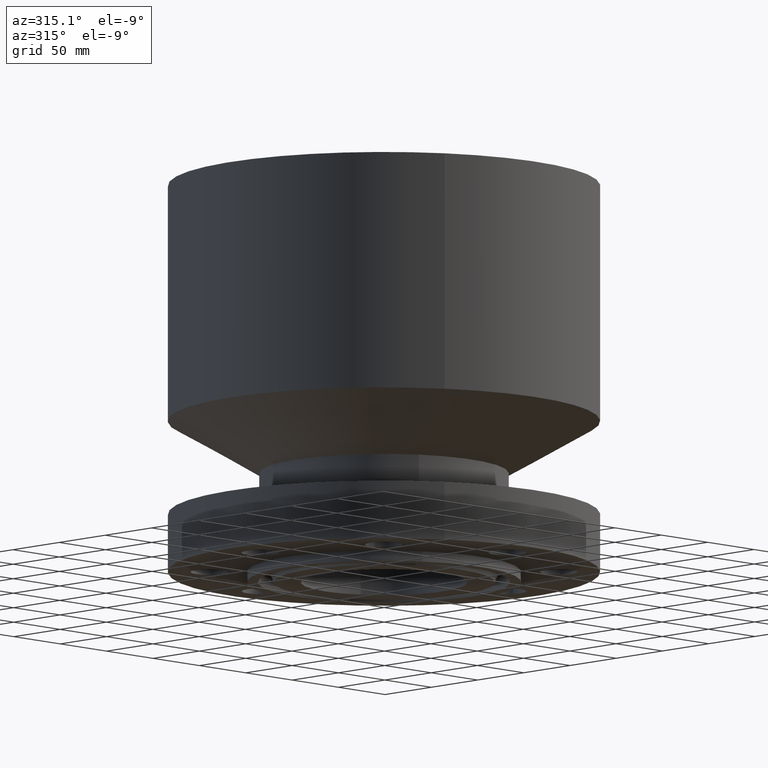
[diagram: clean part render]
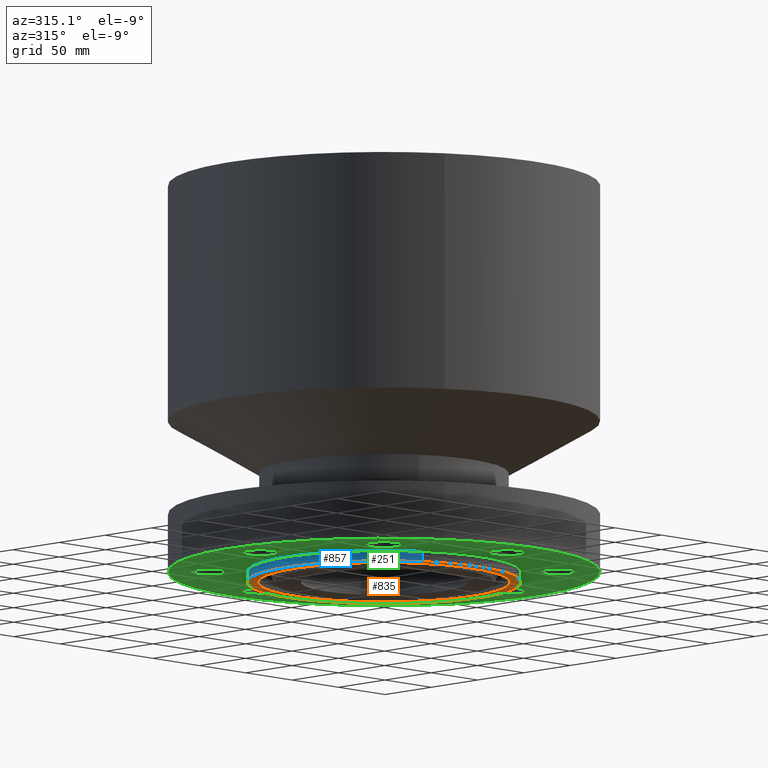
[diagram: same view with three faces highlighted in distinct colors, each labeled with its STEP entity id]
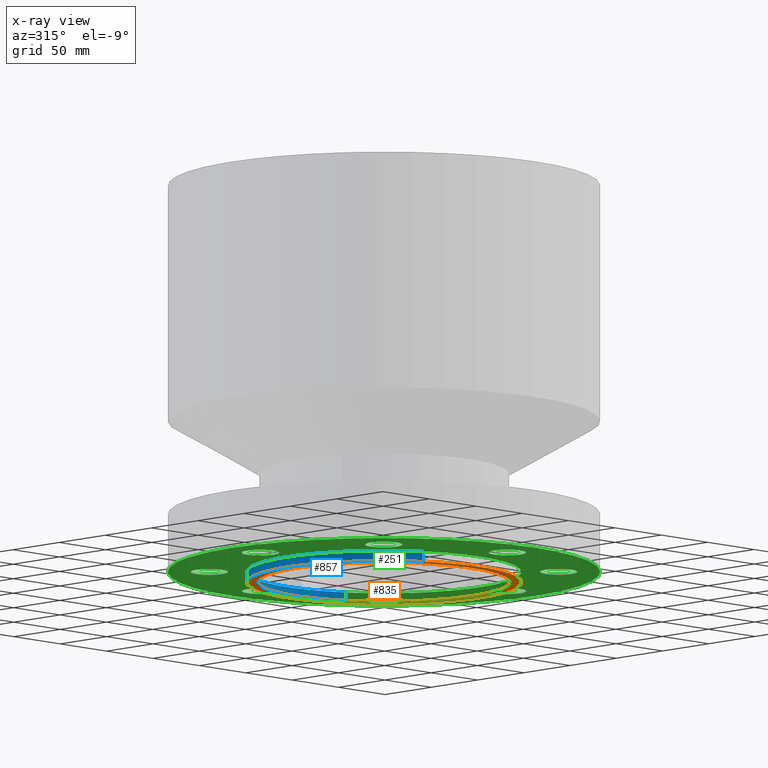
[diagram: x-ray of the same camera — body ghosted, the three highlighted faces saturated]
A machine part, auxiliary view with three faces highlighted in distinct colors.
The next image is the same camera in x-ray (body ghosted, the three faces saturated) — at least one of them is partly hidden behind the body in this view.
Their STEP definitions:

[orange] entity #835 — the highlighted planar face has unit normal (0, 0, -1).
#593=AXIS2_PLACEMENT_3D('Plane Axis2P3D',#590,#591,#592) ;
#784=AXIS2_PLACEMENT_3D('Circle Axis2P3D',#782,#783,$) ;
#803=AXIS2_PLACEMENT_3D('Circle Axis2P3D',#801,#802,$) ;
#815=AXIS2_PLACEMENT_3D('Circle Axis2P3D',#813,#814,$) ;
#824=AXIS2_PLACEMENT_3D('Circle Axis2P3D',#822,#823,$) ;
#590=CARTESIAN_POINT('Axis2P3D Location',(0.,2.50000000001,-0.313000000001)) ;
#779=CARTESIAN_POINT('Vertex',(-1.82037877009,-3.33218098751,-0.313000000001)) ;
#782=CARTESIAN_POINT('Axis2P3D Location',(0.,0.,-0.313000000001)) ;
#786=CARTESIAN_POINT('Vertex',(1.82037877009,3.33218098751,-0.313000000001)) ;
#801=CARTESIAN_POINT('Axis2P3D Location',(0.,0.,-0.313000000001)) ;
#813=CARTESIAN_POINT('Axis2P3D Location',(0.,0.,-0.313000000001)) ;
#817=CARTESIAN_POINT('Vertex',(-1.97763034675,-3.62002806781,-0.313000000001)) ;
#819=CARTESIAN_POINT('Vertex',(1.97763034675,3.62002806781,-0.313000000001)) ;
#822=CARTESIAN_POINT('Axis2P3D Location',(0.,0.,-0.313000000001)) ;
#591=DIRECTION('Axis2P3D Direction',(0.,0.,-0.0393700787402)) ;
#592=DIRECTION('Axis2P3D XDirection',(0.0393700787402,0.,0.)) ;
#783=DIRECTION('Axis2P3D Direction',(0.,0.,-0.0393700787402)) ;
#802=DIRECTION('Axis2P3D Direction',(0.,0.,-0.0393700787402)) ;
#814=DIRECTION('Axis2P3D Direction',(0.,0.,-0.0393700787402)) ;
#823=DIRECTION('Axis2P3D Direction',(0.,0.,-0.0393700787402)) ;
#828=ORIENTED_EDGE('',*,*,#821,.T.) ;
#829=ORIENTED_EDGE('',*,*,#826,.T.) ;
#832=ORIENTED_EDGE('',*,*,#805,.F.) ;
#833=ORIENTED_EDGE('',*,*,#788,.F.) ;
#834=FACE_BOUND('',#831,.T.) ;
#835=ADVANCED_FACE('PartBody',(#830,#834),#594,.T.) ;
#785=CIRCLE('generated circle',#784,3.79700000002) ;
#804=CIRCLE('generated circle',#803,3.79700000002) ;
#816=CIRCLE('generated circle',#815,4.12500000002) ;
#825=CIRCLE('generated circle',#824,4.12500000002) ;
#788=EDGE_CURVE('',#780,#787,#785,.T.) ;
#805=EDGE_CURVE('',#787,#780,#804,.T.) ;
#821=EDGE_CURVE('',#818,#820,#816,.T.) ;
#826=EDGE_CURVE('',#820,#818,#825,.T.) ;
#827=EDGE_LOOP('',(#828,#829)) ;
#831=EDGE_LOOP('',(#832,#833)) ;
#830=FACE_OUTER_BOUND('',#827,.T.) ;
#594=PLANE('',#593) ;
#780=VERTEX_POINT('',#779) ;
#787=VERTEX_POINT('',#786) ;
#818=VERTEX_POINT('',#817) ;
#820=VERTEX_POINT('',#819) ;

[blue] entity #857 — the highlighted cylindrical surface (partial cylindrical patch) has radius 104.775 mm, axis along (0, 0, -1).
#118=AXIS2_PLACEMENT_3D('Circle Axis2P3D',#116,#117,$) ;
#815=AXIS2_PLACEMENT_3D('Circle Axis2P3D',#813,#814,$) ;
#839=AXIS2_PLACEMENT_3D('Cylinder Axis2P3D',#836,#837,#838) ;
#111=CARTESIAN_POINT('Vertex',(1.97763034675,3.62002806781,0.)) ;
#113=CARTESIAN_POINT('Vertex',(-1.97763034675,-3.62002806781,0.)) ;
#116=CARTESIAN_POINT('Axis2P3D Location',(0.,0.,0.)) ;
#813=CARTESIAN_POINT('Axis2P3D Location',(0.,0.,-0.313000000001)) ;
#817=CARTESIAN_POINT('Vertex',(-1.97763034675,-3.62002806781,-0.313000000001)) ;
#819=CARTESIAN_POINT('Vertex',(1.97763034675,3.62002806781,-0.313000000001)) ;
#836=CARTESIAN_POINT('Axis2P3D Location',(0.,0.,5.71850000002)) ;
#841=CARTESIAN_POINT('Line Origine',(-1.97763034675,-3.62002806781,-0.156500000001)) ;
#846=CARTESIAN_POINT('Line Origine',(1.97763034675,3.62002806781,-0.156500000001)) ;
#117=DIRECTION('Axis2P3D Direction',(0.,0.,-0.0393700787402)) ;
#814=DIRECTION('Axis2P3D Direction',(0.,0.,-0.0393700787402)) ;
#837=DIRECTION('Axis2P3D Direction',(0.,0.,-0.0393700787402)) ;
#838=DIRECTION('Axis2P3D XDirection',(0.0188750212049,0.0345504945626,0.)) ;
#842=DIRECTION('Vector Direction',(0.,0.,-0.0393700787402)) ;
#847=DIRECTION('Vector Direction',(0.,0.,-0.0393700787402)) ;
#843=VECTOR('Line Direction',#842,0.0393700787402) ;
#848=VECTOR('Line Direction',#847,0.0393700787402) ;
#852=ORIENTED_EDGE('',*,*,#821,.F.) ;
#853=ORIENTED_EDGE('',*,*,#845,.T.) ;
#854=ORIENTED_EDGE('',*,*,#120,.T.) ;
#855=ORIENTED_EDGE('',*,*,#850,.F.) ;
#857=ADVANCED_FACE('PartBody',(#856),#840,.T.) ;
#119=CIRCLE('generated circle',#118,4.12500000002) ;
#816=CIRCLE('generated circle',#815,4.12500000002) ;
#840=CYLINDRICAL_SURFACE('generated cylinder',#839,4.12500000002) ;
#120=EDGE_CURVE('',#114,#112,#119,.T.) ;
#821=EDGE_CURVE('',#818,#820,#816,.T.) ;
#845=EDGE_CURVE('',#818,#114,#844,.F.) ;
#850=EDGE_CURVE('',#820,#112,#849,.F.) ;
#851=EDGE_LOOP('',(#852,#853,#854,#855)) ;
#856=FACE_OUTER_BOUND('',#851,.T.) ;
#844=LINE('Line',#841,#843) ;
#849=LINE('Line',#846,#848) ;
#112=VERTEX_POINT('',#111) ;
#114=VERTEX_POINT('',#113) ;
#818=VERTEX_POINT('',#817) ;
#820=VERTEX_POINT('',#819) ;

[green] entity #251 — the highlighted planar face has unit normal (0, 0, -1).
#51=AXIS2_PLACEMENT_3D('Circle Axis2P3D',#49,#50,$) ;
#78=AXIS2_PLACEMENT_3D('Plane Axis2P3D',#75,#76,#77) ;
#82=AXIS2_PLACEMENT_3D('Circle Axis2P3D',#80,#81,$) ;
#91=AXIS2_PLACEMENT_3D('Circle Axis2P3D',#89,#90,$) ;
#100=AXIS2_PLACEMENT_3D('Circle Axis2P3D',#98,#99,$) ;
#109=AXIS2_PLACEMENT_3D('Circle Axis2P3D',#107,#108,$) ;
#118=AXIS2_PLACEMENT_3D('Circle Axis2P3D',#116,#117,$) ;
#127=AXIS2_PLACEMENT_3D('Circle Axis2P3D',#125,#126,$) ;
#136=AXIS2_PLACEMENT_3D('Circle Axis2P3D',#134,#135,$) ;
#145=AXIS2_PLACEMENT_3D('Circle Axis2P3D',#143,#144,$) ;
#154=AXIS2_PLACEMENT_3D('Circle Axis2P3D',#152,#153,$) ;
#163=AXIS2_PLACEMENT_3D('Circle Axis2P3D',#161,#162,$) ;
#172=AXIS2_PLACEMENT_3D('Circle Axis2P3D',#170,#171,$) ;
#181=AXIS2_PLACEMENT_3D('Circle Axis2P3D',#179,#180,$) ;
#190=AXIS2_PLACEMENT_3D('Circle Axis2P3D',#188,#189,$) ;
#199=AXIS2_PLACEMENT_3D('Circle Axis2P3D',#197,#198,$) ;
#208=AXIS2_PLACEMENT_3D('Circle Axis2P3D',#206,#207,$) ;
#217=AXIS2_PLACEMENT_3D('Circle Axis2P3D',#215,#216,$) ;
#226=AXIS2_PLACEMENT_3D('Circle Axis2P3D',#224,#225,$) ;
#235=AXIS2_PLACEMENT_3D('Circle Axis2P3D',#233,#234,$) ;
#244=AXIS2_PLACEMENT_3D('Circle Axis2P3D',#242,#243,$) ;
#46=CARTESIAN_POINT('Vertex',(5.74144623468,0.268478301619,2.2401153548E-016)) ;
#49=CARTESIAN_POINT('Axis2P3D Location',(5.25000000002,0.,0.)) ;
#53=CARTESIAN_POINT('Vertex',(4.75855376536,-0.268478301619,2.2401153548E-016)) ;
#75=CARTESIAN_POINT('Axis2P3D Location',(0.,3.48137906988,0.)) ;
#80=CARTESIAN_POINT('Axis2P3D Location',(0.,0.,0.)) ;
#84=CARTESIAN_POINT('Vertex',(-3.11626600094,-5.70428665231,1.1189649382E-015)) ;
#86=CARTESIAN_POINT('Vertex',(3.11626600094,5.70428665231,1.1189649382E-015)) ;
#89=CARTESIAN_POINT('Axis2P3D Location',(0.,0.,0.)) ;
#98=CARTESIAN_POINT('Axis2P3D Location',(5.25000000002,0.,0.)) ;
#107=CARTESIAN_POINT('Axis2P3D Location',(0.,0.,0.)) ;
#111=CARTESIAN_POINT('Vertex',(1.97763034675,3.62002806781,0.)) ;
#113=CARTESIAN_POINT('Vertex',(-1.97763034675,-3.62002806781,0.)) ;
#116=CARTESIAN_POINT('Axis2P3D Location',(0.,0.,0.)) ;
#125=CARTESIAN_POINT('Axis2P3D Location',(3.71231060124,-3.71231060124,0.)) ;
#129=CARTESIAN_POINT('Vertex',(4.24965839404,-3.86997273868,0.)) ;
#131=CARTESIAN_POINT('Vertex',(3.17496280845,-3.5546484638,0.)) ;
#134=CARTESIAN_POINT('Axis2P3D Location',(3.71231060124,-3.71231060124,0.)) ;
#143=CARTESIAN_POINT('Axis2P3D Location',(4.19611851827E-016,-5.25000000002,0.)) ;
#147=CARTESIAN_POINT('Vertex',(0.268478301619,-5.74144623468,0.)) ;
#149=CARTESIAN_POINT('Vertex',(-0.268478301619,-4.75855376536,0.)) ;
#152=CARTESIAN_POINT('Axis2P3D Location',(-8.39223703654E-016,-5.25000000002,0.)) ;
#161=CARTESIAN_POINT('Axis2P3D Location',(-3.71231060124,-3.71231060124,0.)) ;
#165=CARTESIAN_POINT('Vertex',(-3.86997273868,-4.24965839404,0.)) ;
#167=CARTESIAN_POINT('Vertex',(-3.5546484638,-3.17496280845,0.)) ;
#170=CARTESIAN_POINT('Axis2P3D Location',(-3.71231060124,-3.71231060124,0.)) ;
#179=CARTESIAN_POINT('Axis2P3D Location',(-5.25000000002,-1.1189649382E-015,0.)) ;
#183=CARTESIAN_POINT('Vertex',(-5.74144623468,-0.268478301619,0.)) ;
#185=CARTESIAN_POINT('Vertex',(-4.75855376536,0.268478301619,0.)) ;
#188=CARTESIAN_POINT('Axis2P3D Location',(-5.25000000002,0.,0.)) ;
#197=CARTESIAN_POINT('Axis2P3D Location',(-3.71231060124,3.71231060124,0.)) ;
#201=CARTESIAN_POINT('Vertex',(-4.24965839404,3.86997273868,0.)) ;
#203=CARTESIAN_POINT('Vertex',(-3.17496280845,3.5546484638,0.)) ;
#206=CARTESIAN_POINT('Axis2P3D Location',(-3.71231060124,3.71231060124,0.)) ;
#215=CARTESIAN_POINT('Axis2P3D Location',(-1.46864148139E-015,5.25000000002,0.)) ;
#219=CARTESIAN_POINT('Vertex',(-0.268478301619,5.74144623468,0.)) ;
#221=CARTESIAN_POINT('Vertex',(0.268478301619,4.75855376536,0.)) ;
#224=CARTESIAN_POINT('Axis2P3D Location',(-9.09159012291E-016,5.25000000002,0.)) ;
#233=CARTESIAN_POINT('Axis2P3D Location',(3.71231060124,3.71231060124,0.)) ;
#237=CARTESIAN_POINT('Vertex',(3.86997273868,4.24965839404,0.)) ;
#239=CARTESIAN_POINT('Vertex',(3.5546484638,3.17496280845,0.)) ;
#242=CARTESIAN_POINT('Axis2P3D Location',(3.71231060124,3.71231060124,0.)) ;
#50=DIRECTION('Axis2P3D Direction',(0.,-0.,0.0393700787402)) ;
#76=DIRECTION('Axis2P3D Direction',(0.,0.,-0.0393700787402)) ;
#77=DIRECTION('Axis2P3D XDirection',(0.0393700787402,0.,0.)) ;
#81=DIRECTION('Axis2P3D Direction',(0.,0.,-0.0393700787402)) ;
#90=DIRECTION('Axis2P3D Direction',(0.,0.,-0.0393700787402)) ;
#99=DIRECTION('Axis2P3D Direction',(0.,0.,-0.0393700787402)) ;
#108=DIRECTION('Axis2P3D Direction',(0.,0.,-0.0393700787402)) ;
#117=DIRECTION('Axis2P3D Direction',(0.,0.,-0.0393700787402)) ;
#126=DIRECTION('Axis2P3D Direction',(0.,0.,-0.0393700787402)) ;
#135=DIRECTION('Axis2P3D Direction',(0.,0.,-0.0393700787402)) ;
#144=DIRECTION('Axis2P3D Direction',(0.,0.,-0.0393700787402)) ;
#153=DIRECTION('Axis2P3D Direction',(0.,0.,-0.0393700787402)) ;
#162=DIRECTION('Axis2P3D Direction',(0.,0.,-0.0393700787402)) ;
#171=DIRECTION('Axis2P3D Direction',(0.,0.,-0.0393700787402)) ;
#180=DIRECTION('Axis2P3D Direction',(0.,0.,-0.0393700787402)) ;
#189=DIRECTION('Axis2P3D Direction',(0.,0.,-0.0393700787402)) ;
#198=DIRECTION('Axis2P3D Direction',(0.,0.,-0.0393700787402)) ;
#207=DIRECTION('Axis2P3D Direction',(0.,0.,-0.0393700787402)) ;
#216=DIRECTION('Axis2P3D Direction',(0.,0.,-0.0393700787402)) ;
#225=DIRECTION('Axis2P3D Direction',(0.,0.,-0.0393700787402)) ;
#234=DIRECTION('Axis2P3D Direction',(0.,0.,-0.0393700787402)) ;
#243=DIRECTION('Axis2P3D Direction',(0.,0.,-0.0393700787402)) ;
#95=ORIENTED_EDGE('',*,*,#88,.T.) ;
#96=ORIENTED_EDGE('',*,*,#93,.T.) ;
#104=ORIENTED_EDGE('',*,*,#102,.F.) ;
#105=ORIENTED_EDGE('',*,*,#55,.F.) ;
#122=ORIENTED_EDGE('',*,*,#115,.F.) ;
#123=ORIENTED_EDGE('',*,*,#120,.F.) ;
#140=ORIENTED_EDGE('',*,*,#133,.F.) ;
#141=ORIENTED_EDGE('',*,*,#138,.F.) ;
#158=ORIENTED_EDGE('',*,*,#151,.F.) ;
#159=ORIENTED_EDGE('',*,*,#156,.F.) ;
#176=ORIENTED_EDGE('',*,*,#169,.F.) ;
#177=ORIENTED_EDGE('',*,*,#174,.F.) ;
#194=ORIENTED_EDGE('',*,*,#187,.F.) ;
#195=ORIENTED_EDGE('',*,*,#192,.F.) ;
#212=ORIENTED_EDGE('',*,*,#205,.F.) ;
#213=ORIENTED_EDGE('',*,*,#210,.F.) ;
#230=ORIENTED_EDGE('',*,*,#223,.F.) ;
#231=ORIENTED_EDGE('',*,*,#228,.F.) ;
#248=ORIENTED_EDGE('',*,*,#241,.F.) ;
#249=ORIENTED_EDGE('',*,*,#246,.F.) ;
#106=FACE_BOUND('',#103,.T.) ;
#124=FACE_BOUND('',#121,.T.) ;
#142=FACE_BOUND('',#139,.T.) ;
#160=FACE_BOUND('',#157,.T.) ;
#178=FACE_BOUND('',#175,.T.) ;
#196=FACE_BOUND('',#193,.T.) ;
#214=FACE_BOUND('',#211,.T.) ;
#232=FACE_BOUND('',#229,.T.) ;
#250=FACE_BOUND('',#247,.T.) ;
#251=ADVANCED_FACE('PartBody',(#97,#106,#124,#142,#160,#178,#196,#214,#232,#250),#79,.T.) ;
#52=CIRCLE('generated circle',#51,0.560000000002) ;
#83=CIRCLE('generated circle',#82,6.50000000003) ;
#92=CIRCLE('generated circle',#91,6.50000000003) ;
#101=CIRCLE('generated circle',#100,0.560000000002) ;
#110=CIRCLE('generated circle',#109,4.12500000002) ;
#119=CIRCLE('generated circle',#118,4.12500000002) ;
#128=CIRCLE('generated circle',#127,0.560000000002) ;
#137=CIRCLE('generated circle',#136,0.560000000002) ;
#146=CIRCLE('generated circle',#145,0.560000000002) ;
#155=CIRCLE('generated circle',#154,0.560000000002) ;
#164=CIRCLE('generated circle',#163,0.560000000002) ;
#173=CIRCLE('generated circle',#172,0.560000000002) ;
#182=CIRCLE('generated circle',#181,0.560000000002) ;
#191=CIRCLE('generated circle',#190,0.560000000002) ;
#200=CIRCLE('generated circle',#199,0.560000000002) ;
#209=CIRCLE('generated circle',#208,0.560000000002) ;
#218=CIRCLE('generated circle',#217,0.560000000002) ;
#227=CIRCLE('generated circle',#226,0.560000000002) ;
#236=CIRCLE('generated circle',#235,0.560000000002) ;
#245=CIRCLE('generated circle',#244,0.560000000002) ;
#55=EDGE_CURVE('',#47,#54,#52,.F.) ;
#88=EDGE_CURVE('',#85,#87,#83,.T.) ;
#93=EDGE_CURVE('',#87,#85,#92,.T.) ;
#102=EDGE_CURVE('',#54,#47,#101,.T.) ;
#115=EDGE_CURVE('',#112,#114,#110,.T.) ;
#120=EDGE_CURVE('',#114,#112,#119,.T.) ;
#133=EDGE_CURVE('',#130,#132,#128,.T.) ;
#138=EDGE_CURVE('',#132,#130,#137,.T.) ;
#151=EDGE_CURVE('',#148,#150,#146,.T.) ;
#156=EDGE_CURVE('',#150,#148,#155,.T.) ;
#169=EDGE_CURVE('',#166,#168,#164,.T.) ;
#174=EDGE_CURVE('',#168,#166,#173,.T.) ;
#187=EDGE_CURVE('',#184,#186,#182,.T.) ;
#192=EDGE_CURVE('',#186,#184,#191,.T.) ;
#205=EDGE_CURVE('',#202,#204,#200,.T.) ;
#210=EDGE_CURVE('',#204,#202,#209,.T.) ;
#223=EDGE_CURVE('',#220,#222,#218,.T.) ;
#228=EDGE_CURVE('',#222,#220,#227,.T.) ;
#241=EDGE_CURVE('',#238,#240,#236,.T.) ;
#246=EDGE_CURVE('',#240,#238,#245,.T.) ;
#94=EDGE_LOOP('',(#95,#96)) ;
#103=EDGE_LOOP('',(#104,#105)) ;
#121=EDGE_LOOP('',(#122,#123)) ;
#139=EDGE_LOOP('',(#140,#141)) ;
#157=EDGE_LOOP('',(#158,#159)) ;
#175=EDGE_LOOP('',(#176,#177)) ;
#193=EDGE_LOOP('',(#194,#195)) ;
#211=EDGE_LOOP('',(#212,#213)) ;
#229=EDGE_LOOP('',(#230,#231)) ;
#247=EDGE_LOOP('',(#248,#249)) ;
#97=FACE_OUTER_BOUND('',#94,.T.) ;
#79=PLANE('',#78) ;
#47=VERTEX_POINT('',#46) ;
#54=VERTEX_POINT('',#53) ;
#85=VERTEX_POINT('',#84) ;
#87=VERTEX_POINT('',#86) ;
#112=VERTEX_POINT('',#111) ;
#114=VERTEX_POINT('',#113) ;
#130=VERTEX_POINT('',#129) ;
#132=VERTEX_POINT('',#131) ;
#148=VERTEX_POINT('',#147) ;
#150=VERTEX_POINT('',#149) ;
#166=VERTEX_POINT('',#165) ;
#168=VERTEX_POINT('',#167) ;
#184=VERTEX_POINT('',#183) ;
#186=VERTEX_POINT('',#185) ;
#202=VERTEX_POINT('',#201) ;
#204=VERTEX_POINT('',#203) ;
#220=VERTEX_POINT('',#219) ;
#222=VERTEX_POINT('',#221) ;
#238=VERTEX_POINT('',#237) ;
#240=VERTEX_POINT('',#239) ;